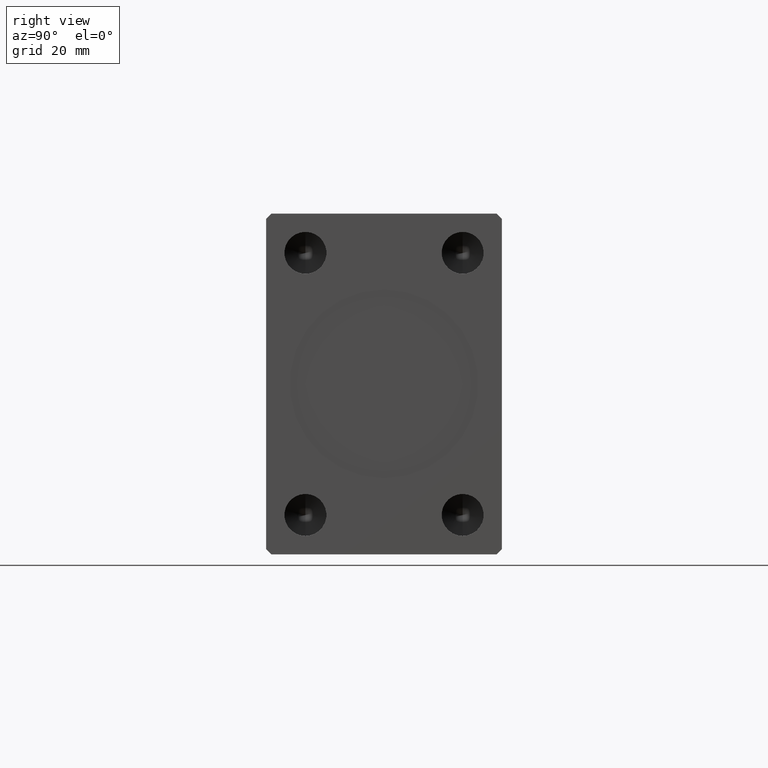
[diagram: clean part render]
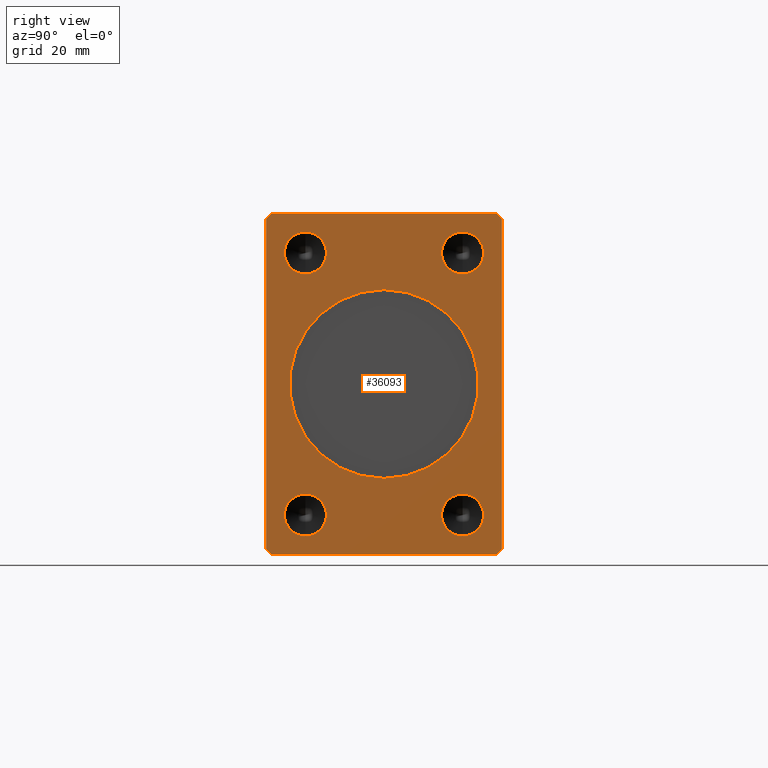
[diagram: same view with one face highlighted and labeled with its STEP entity id]
A machine part, right view. The second image highlights one B-rep face of the part: STEP entity #36093.
In plain terms, the highlighted planar face has unit normal (1, 0, 0).
Its self-contained STEP definition (entity closure, byte-faithful):
#133 = VECTOR ( 'NONE', #42414, 1000.000000000000000 ) ;
#286 = CARTESIAN_POINT ( 'NONE',  ( 108.0000000000000000, 22.49999999999999645, 31.50000000000000000 ) ) ;
#768 = CIRCLE ( 'NONE', #11513, 4.000000000000000000 ) ;
#1060 = ORIENTED_EDGE ( 'NONE', *, *, #19484, .T. ) ;
#1369 = CARTESIAN_POINT ( 'NONE',  ( 108.0000000000000000, 15.00000000000000355, -24.99999999999999289 ) ) ;
#1375 = VECTOR ( 'NONE', #36375, 1000.000000000000000 ) ;
#2331 = VECTOR ( 'NONE', #12858, 1000.000000000000114 ) ;
#2510 = ORIENTED_EDGE ( 'NONE', *, *, #15316, .F. ) ;
#2592 = FACE_OUTER_BOUND ( 'NONE', #20548, .T. ) ;
#3094 = ORIENTED_EDGE ( 'NONE', *, *, #22411, .F. ) ;
#3129 = VERTEX_POINT ( 'NONE', #43939 ) ;
#3508 = DIRECTION ( 'NONE',  ( 0.000000000000000000, 0.000000000000000000, -1.000000000000000000 ) ) ;
#3863 = CARTESIAN_POINT ( 'NONE',  ( 108.0000000000000000, 21.49999999999999645, -32.50000000000000000 ) ) ;
#4545 = LINE ( 'NONE', #41559, #133 ) ;
#4831 = EDGE_CURVE ( 'NONE', #16840, #36046, #22054, .T. ) ;
#4877 = VERTEX_POINT ( 'NONE', #5047 ) ;
#4881 = CARTESIAN_POINT ( 'NONE',  ( 108.0000000000000000, -14.99999999999999645, -20.99999999999999645 ) ) ;
#5047 = CARTESIAN_POINT ( 'NONE',  ( 108.0000000000000000, 15.00000000000000355, -28.99999999999999289 ) ) ;
#5081 = EDGE_CURVE ( 'NONE', #20437, #21865, #35329, .T. ) ;
#5135 = CARTESIAN_POINT ( 'NONE',  ( 108.0000000000000000, -21.50000000000001776, -32.50000000000000711 ) ) ;
#5523 = VERTEX_POINT ( 'NONE', #42295 ) ;
#5662 = ORIENTED_EDGE ( 'NONE', *, *, #6501, .T. ) ;
#6396 = PLANE ( 'NONE',  #40704 ) ;
#6501 = EDGE_CURVE ( 'NONE', #21865, #29515, #32516, .T. ) ;
#6567 = DIRECTION ( 'NONE',  ( 1.000000000000000000, -0.000000000000000000, -0.000000000000000000 ) ) ;
#6584 = AXIS2_PLACEMENT_3D ( 'NONE', #43044, #25642, #33236 ) ;
#6603 = CARTESIAN_POINT ( 'NONE',  ( 108.0000000000000000, -21.50000000000001776, -32.50000000000000711 ) ) ;
#7260 = DIRECTION ( 'NONE',  ( 1.000000000000000000, -0.000000000000000000, -0.000000000000000000 ) ) ;
#7395 = EDGE_CURVE ( 'NONE', #4877, #5523, #17871, .T. ) ;
#7900 = VECTOR ( 'NONE', #36556, 1000.000000000000000 ) ;
#8143 = EDGE_CURVE ( 'NONE', #36046, #16840, #10810, .T. ) ;
#8589 = AXIS2_PLACEMENT_3D ( 'NONE', #1369, #8753, #12088 ) ;
#8606 = EDGE_CURVE ( 'NONE', #23102, #32372, #38757, .T. ) ;
#8753 = DIRECTION ( 'NONE',  ( 1.000000000000000000, -0.000000000000000000, -0.000000000000000000 ) ) ;
#9128 = CARTESIAN_POINT ( 'NONE',  ( 108.0000000000000000, 22.49999999999999645, -31.50000000000000000 ) ) ;
#9152 = DIRECTION ( 'NONE',  ( 0.000000000000000000, 0.000000000000000000, -1.000000000000000000 ) ) ;
#9315 = CARTESIAN_POINT ( 'NONE',  ( 108.0000000000000000, 0.000000000000000000, 0.000000000000000000 ) ) ;
#9364 = AXIS2_PLACEMENT_3D ( 'NONE', #33536, #26626, #19938 ) ;
#9528 = LINE ( 'NONE', #36491, #2331 ) ;
#9565 = CIRCLE ( 'NONE', #15235, 4.000000000000000000 ) ;
#9671 = VERTEX_POINT ( 'NONE', #17348 ) ;
#9677 = VERTEX_POINT ( 'NONE', #24227 ) ;
#10158 = CIRCLE ( 'NONE', #32930, 4.000000000000000000 ) ;
#10810 = CIRCLE ( 'NONE', #9364, 18.00000000000000000 ) ;
#10967 = CARTESIAN_POINT ( 'NONE',  ( 108.0000000000000000, -22.50000000000001421, -31.50000000000000711 ) ) ;
#11064 = CARTESIAN_POINT ( 'NONE',  ( 108.0000000000000000, -21.50000000000001421, 32.50000000000000000 ) ) ;
#11188 = CARTESIAN_POINT ( 'NONE',  ( 108.0000000000000000, 15.00000000000000355, 29.00000000000000000 ) ) ;
#11297 = EDGE_CURVE ( 'NONE', #32983, #9677, #12184, .T. ) ;
#11513 = AXIS2_PLACEMENT_3D ( 'NONE', #33038, #36155, #39276 ) ;
#11686 = ORIENTED_EDGE ( 'NONE', *, *, #8606, .T. ) ;
#11715 = LINE ( 'NONE', #11064, #14523 ) ;
#12052 = CARTESIAN_POINT ( 'NONE',  ( 108.0000000000000000, 15.00000000000000355, 25.00000000000000000 ) ) ;
#12088 = DIRECTION ( 'NONE',  ( 0.000000000000000000, 0.000000000000000000, -1.000000000000000000 ) ) ;
#12184 = CIRCLE ( 'NONE', #6584, 4.000000000000000000 ) ;
#12598 = VERTEX_POINT ( 'NONE', #37544 ) ;
#12858 = DIRECTION ( 'NONE',  ( 0.000000000000000000, -0.7071067811865474617, 0.7071067811865474617 ) ) ;
#12871 = VECTOR ( 'NONE', #38688, 1000.000000000000000 ) ;
#12922 = CARTESIAN_POINT ( 'NONE',  ( 108.0000000000000000, 15.00000000000000355, 21.00000000000000000 ) ) ;
#13528 = ORIENTED_EDGE ( 'NONE', *, *, #7395, .F. ) ;
#13835 = ORIENTED_EDGE ( 'NONE', *, *, #8143, .F. ) ;
#13946 = ORIENTED_EDGE ( 'NONE', *, *, #34383, .F. ) ;
#14235 = VECTOR ( 'NONE', #31976, 1000.000000000000114 ) ;
#14523 = VECTOR ( 'NONE', #41587, 1000.000000000000114 ) ;
#14907 = CARTESIAN_POINT ( 'NONE',  ( 108.0000000000000000, -22.50000000000001421, -31.50000000000000711 ) ) ;
#15235 = AXIS2_PLACEMENT_3D ( 'NONE', #39968, #29491, #19682 ) ;
#15316 = EDGE_CURVE ( 'NONE', #9677, #32983, #10158, .T. ) ;
#15527 = AXIS2_PLACEMENT_3D ( 'NONE', #17075, #7260, #20873 ) ;
#16653 = LINE ( 'NONE', #6603, #12871 ) ;
#16840 = VERTEX_POINT ( 'NONE', #32271 ) ;
#16860 = CARTESIAN_POINT ( 'NONE',  ( 108.0000000000000000, -14.99999999999999645, 28.99999999999999645 ) ) ;
#17075 = CARTESIAN_POINT ( 'NONE',  ( 108.0000000000000000, 15.00000000000000355, -24.99999999999999289 ) ) ;
#17348 = CARTESIAN_POINT ( 'NONE',  ( 108.0000000000000000, -14.99999999999999645, -28.99999999999999645 ) ) ;
#17841 = EDGE_CURVE ( 'NONE', #23183, #27359, #33706, .T. ) ;
#17871 = CIRCLE ( 'NONE', #8589, 4.000000000000000000 ) ;
#18755 = DIRECTION ( 'NONE',  ( 1.000000000000000000, -0.000000000000000000, -0.000000000000000000 ) ) ;
#19216 = EDGE_CURVE ( 'NONE', #39370, #9671, #9565, .T. ) ;
#19484 = EDGE_CURVE ( 'NONE', #12598, #26682, #11715, .T. ) ;
#19682 = DIRECTION ( 'NONE',  ( 0.000000000000000000, 0.000000000000000000, -1.000000000000000000 ) ) ;
#19781 = FACE_BOUND ( 'NONE', #26054, .T. ) ;
#19938 = DIRECTION ( 'NONE',  ( 0.000000000000000000, 0.000000000000000000, -1.000000000000000000 ) ) ;
#20018 = ORIENTED_EDGE ( 'NONE', *, *, #36888, .F. ) ;
#20350 = EDGE_LOOP ( 'NONE', ( #13528, #3094 ) ) ;
#20437 = VERTEX_POINT ( 'NONE', #3863 ) ;
#20548 = EDGE_LOOP ( 'NONE', ( #38526, #41566, #1060, #32066, #11686, #23471, #41072, #5662 ) ) ;
#20825 = CARTESIAN_POINT ( 'NONE',  ( 108.0000000000000000, -22.50000000000001776, 31.50000000000000000 ) ) ;
#20873 = DIRECTION ( 'NONE',  ( 0.000000000000000000, 0.000000000000000000, -1.000000000000000000 ) ) ;
#20910 = DIRECTION ( 'NONE',  ( 0.000000000000000000, 0.000000000000000000, -1.000000000000000000 ) ) ;
#21865 = VERTEX_POINT ( 'NONE', #43683 ) ;
#22054 = CIRCLE ( 'NONE', #44140, 18.00000000000000000 ) ;
#22342 = CARTESIAN_POINT ( 'NONE',  ( 108.0000000000000000, 21.49999999999999645, 32.50000000000000000 ) ) ;
#22411 = EDGE_CURVE ( 'NONE', #5523, #4877, #37587, .T. ) ;
#22907 = DIRECTION ( 'NONE',  ( 1.000000000000000000, 0.000000000000000000, 0.000000000000000000 ) ) ;
#23102 = VERTEX_POINT ( 'NONE', #10967 ) ;
#23135 = CARTESIAN_POINT ( 'NONE',  ( 108.0000000000000000, 2.204364238465235428E-15, 18.00000000000000000 ) ) ;
#23183 = VERTEX_POINT ( 'NONE', #12922 ) ;
#23471 = ORIENTED_EDGE ( 'NONE', *, *, #33070, .T. ) ;
#24227 = CARTESIAN_POINT ( 'NONE',  ( 108.0000000000000000, -14.99999999999999645, 20.99999999999999645 ) ) ;
#25642 = DIRECTION ( 'NONE',  ( 1.000000000000000000, -0.000000000000000000, -0.000000000000000000 ) ) ;
#26054 = EDGE_LOOP ( 'NONE', ( #2510, #38978 ) ) ;
#26626 = DIRECTION ( 'NONE',  ( 1.000000000000000000, 0.000000000000000000, 0.000000000000000000 ) ) ;
#26682 = VERTEX_POINT ( 'NONE', #20825 ) ;
#27128 = DIRECTION ( 'NONE',  ( 1.000000000000000000, -0.000000000000000000, -0.000000000000000000 ) ) ;
#27359 = VERTEX_POINT ( 'NONE', #11188 ) ;
#29049 = CARTESIAN_POINT ( 'NONE',  ( 108.0000000000000000, 21.49999999999999645, -32.50000000000000000 ) ) ;
#29491 = DIRECTION ( 'NONE',  ( 1.000000000000000000, -0.000000000000000000, -0.000000000000000000 ) ) ;
#29515 = VERTEX_POINT ( 'NONE', #286 ) ;
#30126 = EDGE_CURVE ( 'NONE', #3129, #12598, #43269, .T. ) ;
#30657 = EDGE_LOOP ( 'NONE', ( #13946, #33267 ) ) ;
#31976 = DIRECTION ( 'NONE',  ( 0.000000000000000000, 0.7071067811865474617, 0.7071067811865474617 ) ) ;
#32066 = ORIENTED_EDGE ( 'NONE', *, *, #36495, .T. ) ;
#32271 = CARTESIAN_POINT ( 'NONE',  ( 108.0000000000000000, 0.000000000000000000, -18.00000000000000000 ) ) ;
#32372 = VERTEX_POINT ( 'NONE', #5135 ) ;
#32516 = LINE ( 'NONE', #9128, #7900 ) ;
#32930 = AXIS2_PLACEMENT_3D ( 'NONE', #38064, #27128, #20910 ) ;
#32983 = VERTEX_POINT ( 'NONE', #16860 ) ;
#33038 = CARTESIAN_POINT ( 'NONE',  ( 108.0000000000000000, -14.99999999999999645, -24.99999999999999645 ) ) ;
#33046 = ORIENTED_EDGE ( 'NONE', *, *, #4831, .F. ) ;
#33070 = EDGE_CURVE ( 'NONE', #32372, #20437, #16653, .T. ) ;
#33236 = DIRECTION ( 'NONE',  ( 0.000000000000000000, 0.000000000000000000, -1.000000000000000000 ) ) ;
#33267 = ORIENTED_EDGE ( 'NONE', *, *, #19216, .F. ) ;
#33536 = CARTESIAN_POINT ( 'NONE',  ( 108.0000000000000000, 0.000000000000000000, 0.000000000000000000 ) ) ;
#33549 = CARTESIAN_POINT ( 'NONE',  ( 108.0000000000000000, 15.00000000000000355, 25.00000000000000000 ) ) ;
#33706 = CIRCLE ( 'NONE', #35150, 4.000000000000000000 ) ;
#34383 = EDGE_CURVE ( 'NONE', #9671, #39370, #768, .T. ) ;
#34728 = CARTESIAN_POINT ( 'NONE',  ( 108.0000000000000000, 0.000000000000000000, 0.000000000000000000 ) ) ;
#35150 = AXIS2_PLACEMENT_3D ( 'NONE', #33549, #6567, #42910 ) ;
#35329 = LINE ( 'NONE', #29049, #14235 ) ;
#36046 = VERTEX_POINT ( 'NONE', #23135 ) ;
#36093 = ADVANCED_FACE ( 'NONE', ( #40505, #40286, #36940, #43178, #19781, #2592 ), #6396, .T. ) ;
#36155 = DIRECTION ( 'NONE',  ( 1.000000000000000000, -0.000000000000000000, -0.000000000000000000 ) ) ;
#36375 = DIRECTION ( 'NONE',  ( 0.000000000000000000, -1.000000000000000000, 0.000000000000000000 ) ) ;
#36491 = CARTESIAN_POINT ( 'NONE',  ( 108.0000000000000000, 22.49999999999999645, 31.50000000000000000 ) ) ;
#36495 = EDGE_CURVE ( 'NONE', #26682, #23102, #4545, .T. ) ;
#36517 = DIRECTION ( 'NONE',  ( 0.000000000000000000, 0.000000000000000000, -1.000000000000000000 ) ) ;
#36556 = DIRECTION ( 'NONE',  ( 0.000000000000000000, 0.000000000000000000, 1.000000000000000000 ) ) ;
#36888 = EDGE_CURVE ( 'NONE', #27359, #23183, #37887, .T. ) ;
#36940 = FACE_BOUND ( 'NONE', #30657, .T. ) ;
#37104 = VECTOR ( 'NONE', #38958, 1000.000000000000114 ) ;
#37544 = CARTESIAN_POINT ( 'NONE',  ( 108.0000000000000000, -21.50000000000001421, 32.50000000000000000 ) ) ;
#37587 = CIRCLE ( 'NONE', #15527, 4.000000000000000000 ) ;
#37676 = ORIENTED_EDGE ( 'NONE', *, *, #17841, .F. ) ;
#37887 = CIRCLE ( 'NONE', #40740, 4.000000000000000000 ) ;
#38064 = CARTESIAN_POINT ( 'NONE',  ( 108.0000000000000000, -14.99999999999999645, 24.99999999999999645 ) ) ;
#38079 = DIRECTION ( 'NONE',  ( 1.000000000000000000, 0.000000000000000000, 0.000000000000000000 ) ) ;
#38225 = EDGE_LOOP ( 'NONE', ( #33046, #13835 ) ) ;
#38526 = ORIENTED_EDGE ( 'NONE', *, *, #43189, .T. ) ;
#38688 = DIRECTION ( 'NONE',  ( 0.000000000000000000, 1.000000000000000000, 1.613696256722610912E-16 ) ) ;
#38757 = LINE ( 'NONE', #14907, #37104 ) ;
#38958 = DIRECTION ( 'NONE',  ( 0.000000000000000000, 0.7071067811865451302, -0.7071067811865500152 ) ) ;
#38978 = ORIENTED_EDGE ( 'NONE', *, *, #11297, .F. ) ;
#39276 = DIRECTION ( 'NONE',  ( 0.000000000000000000, 0.000000000000000000, -1.000000000000000000 ) ) ;
#39370 = VERTEX_POINT ( 'NONE', #4881 ) ;
#39968 = CARTESIAN_POINT ( 'NONE',  ( 108.0000000000000000, -14.99999999999999645, -24.99999999999999645 ) ) ;
#40286 = FACE_BOUND ( 'NONE', #41990, .T. ) ;
#40505 = FACE_BOUND ( 'NONE', #38225, .T. ) ;
#40704 = AXIS2_PLACEMENT_3D ( 'NONE', #9315, #22907, #36517 ) ;
#40740 = AXIS2_PLACEMENT_3D ( 'NONE', #12052, #18755, #9152 ) ;
#41072 = ORIENTED_EDGE ( 'NONE', *, *, #5081, .T. ) ;
#41559 = CARTESIAN_POINT ( 'NONE',  ( 108.0000000000000000, -22.50000000000001776, 31.50000000000000000 ) ) ;
#41566 = ORIENTED_EDGE ( 'NONE', *, *, #30126, .T. ) ;
#41587 = DIRECTION ( 'NONE',  ( 0.000000000000000000, -0.7071067811865474617, -0.7071067811865474617 ) ) ;
#41990 = EDGE_LOOP ( 'NONE', ( #37676, #20018 ) ) ;
#42295 = CARTESIAN_POINT ( 'NONE',  ( 108.0000000000000000, 15.00000000000000355, -20.99999999999999289 ) ) ;
#42414 = DIRECTION ( 'NONE',  ( 0.000000000000000000, 5.507058653894625853E-17, -1.000000000000000000 ) ) ;
#42910 = DIRECTION ( 'NONE',  ( 0.000000000000000000, 0.000000000000000000, -1.000000000000000000 ) ) ;
#43044 = CARTESIAN_POINT ( 'NONE',  ( 108.0000000000000000, -14.99999999999999645, 24.99999999999999645 ) ) ;
#43178 = FACE_BOUND ( 'NONE', #20350, .T. ) ;
#43189 = EDGE_CURVE ( 'NONE', #29515, #3129, #9528, .T. ) ;
#43269 = LINE ( 'NONE', #22342, #1375 ) ;
#43683 = CARTESIAN_POINT ( 'NONE',  ( 108.0000000000000000, 22.49999999999999645, -31.50000000000000000 ) ) ;
#43939 = CARTESIAN_POINT ( 'NONE',  ( 108.0000000000000000, 21.49999999999999645, 32.50000000000000000 ) ) ;
#44140 = AXIS2_PLACEMENT_3D ( 'NONE', #34728, #38079, #3508 ) ;